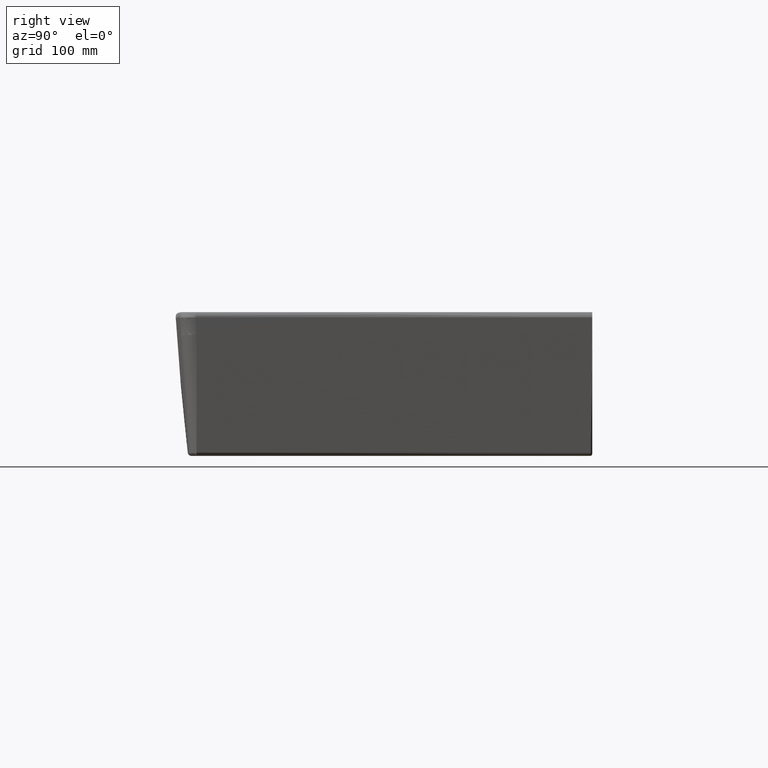
[diagram: clean part render]
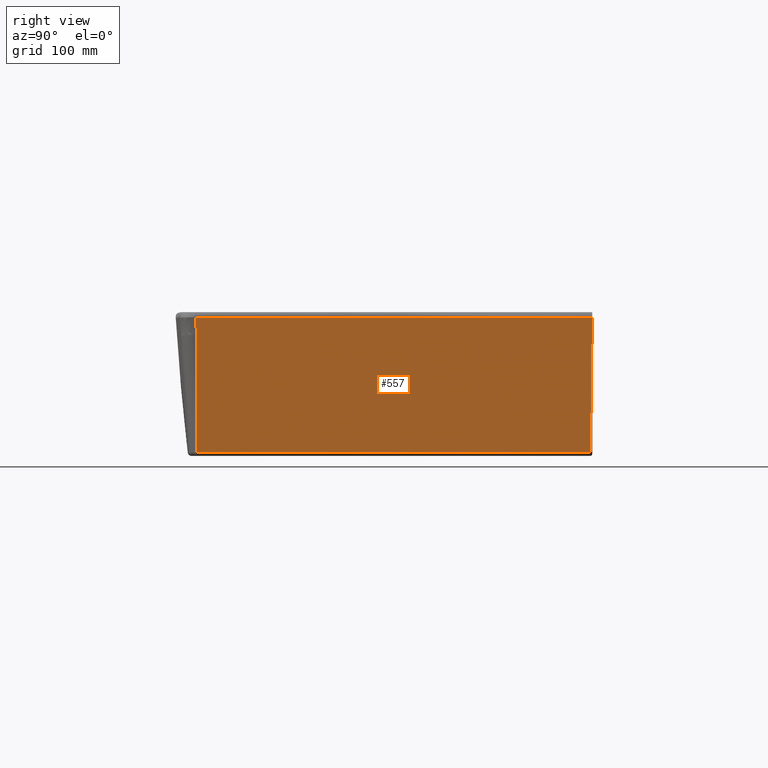
[diagram: same view with one face highlighted and labeled with its STEP entity id]
A machine part, right view. The second image highlights one B-rep face of the part: STEP entity #557.
In plain terms, the highlighted face is a freeform B-spline surface patch.
Its self-contained STEP definition (entity closure, byte-faithful):
#557=ADVANCED_FACE('',(#1414),#982,.T.);
#982=B_SPLINE_SURFACE_WITH_KNOTS('',3,1,((#35309,#35310),(#35311,#35312),
(#35313,#35314),(#35315,#35316),(#35317,#35318)),.UNSPECIFIED.,.F.,.F.,
 .F.,(4,1,4),(2,2),(0.,0.010399644229435,1.),(0.,1.),.UNSPECIFIED.);
#1414=FACE_OUTER_BOUND('',#1875,.T.);
#1875=EDGE_LOOP('',(#4006,#4007,#4008,#4009,#4010,#4011));
#4006=ORIENTED_EDGE('',*,*,#6087,.T.);
#4007=ORIENTED_EDGE('',*,*,#6061,.T.);
#4008=ORIENTED_EDGE('',*,*,#6141,.F.);
#4009=ORIENTED_EDGE('',*,*,#6142,.F.);
#4010=ORIENTED_EDGE('',*,*,#6143,.F.);
#4011=ORIENTED_EDGE('',*,*,#6144,.F.);
#4938=VERTEX_POINT('',#33199);
#4940=VERTEX_POINT('',#33205);
#4958=VERTEX_POINT('',#33810);
#4992=VERTEX_POINT('',#35294);
#4993=VERTEX_POINT('',#35299);
#4994=VERTEX_POINT('',#35304);
#6061=EDGE_CURVE('',#4940,#4938,#7256,.T.);
#6087=EDGE_CURVE('',#4958,#4940,#7282,.T.);
#6141=EDGE_CURVE('',#4992,#4938,#7336,.T.);
#6142=EDGE_CURVE('',#4993,#4992,#7337,.T.);
#6143=EDGE_CURVE('',#4994,#4993,#7338,.T.);
#6144=EDGE_CURVE('',#4958,#4994,#7339,.T.);
#7256=B_SPLINE_CURVE_WITH_KNOTS('',3,(#33201,#33202,#33203,#33204),
 .UNSPECIFIED.,.F.,.F.,(4,4),(0.,1.),.UNSPECIFIED.);
#7282=B_SPLINE_CURVE_WITH_KNOTS('',3,(#33806,#33807,#33808,#33809),
 .UNSPECIFIED.,.F.,.F.,(4,4),(0.,1.),.UNSPECIFIED.);
#7336=B_SPLINE_CURVE_WITH_KNOTS('',3,(#35290,#35291,#35292,#35293),
 .UNSPECIFIED.,.F.,.F.,(4,4),(0.,1.),.UNSPECIFIED.);
#7337=B_SPLINE_CURVE_WITH_KNOTS('',3,(#35295,#35296,#35297,#35298),
 .UNSPECIFIED.,.F.,.F.,(4,4),(0.,1.),.UNSPECIFIED.);
#7338=B_SPLINE_CURVE_WITH_KNOTS('',3,(#35300,#35301,#35302,#35303),
 .UNSPECIFIED.,.F.,.F.,(4,4),(0.,1.),.UNSPECIFIED.);
#7339=B_SPLINE_CURVE_WITH_KNOTS('',3,(#35305,#35306,#35307,#35308),
 .UNSPECIFIED.,.F.,.F.,(4,4),(0.,1.),.UNSPECIFIED.);
#33199=CARTESIAN_POINT('',(441.181061034264,-299.999933154849,-215.214536269219));
#33201=CARTESIAN_POINT('',(446.644900347386,-299.999970200709,-34.4954067995313));
#33202=CARTESIAN_POINT('',(445.792184558365,-299.99836065521,-94.7681701323221));
#33203=CARTESIAN_POINT('',(443.970655281489,-299.998360838226,-155.013510987746));
#33204=CARTESIAN_POINT('',(441.18031251624,-299.999970749842,-215.231429365804));
#33205=CARTESIAN_POINT('',(446.644931233343,-299.999970515952,-34.4953984329526));
#33806=CARTESIAN_POINT('',(446.961008292206,-301.355460891981,-8.07559009287005));
#33807=CARTESIAN_POINT('',(446.876319301074,-300.903596301564,-16.8827810263436));
#33808=CARTESIAN_POINT('',(446.770949986635,-300.451766070868,-25.6893865987465));
#33809=CARTESIAN_POINT('',(446.644900347235,-299.999970200167,-34.4954068100788));
#33810=CARTESIAN_POINT('',(446.961032080887,-301.355450245527,-8.075584840672));
#35290=CARTESIAN_POINT('',(439.223403741211,302.969520417419,-215.231449999601));
#35291=CARTESIAN_POINT('',(439.875628775716,101.979421902586,-215.231449906209));
#35292=CARTESIAN_POINT('',(440.528090825438,-99.0098996138059,-215.231433462549));
#35293=CARTESIAN_POINT('',(441.180335483143,-299.999732860469,-215.231430465818));
#35294=CARTESIAN_POINT('',(439.223434877996,302.96952025286,-215.231124585472));
#35295=CARTESIAN_POINT('',(444.989946514906,305.998850632714,-8.07519912416452));
#35296=CARTESIAN_POINT('',(444.341996175936,304.494045381051,-77.1629889484674));
#35297=CARTESIAN_POINT('',(442.421460084225,302.983622223127,-146.214878413717));
#35298=CARTESIAN_POINT('',(439.223456569694,302.969523618919,-215.230795730423));
#35299=CARTESIAN_POINT('',(444.989944170265,305.998853498157,-8.07540970610167));
#35300=CARTESIAN_POINT('',(444.991134463858,305.631381830874,-8.07559));
#35301=CARTESIAN_POINT('',(444.990737119642,305.75385528959,-8.07559));
#35302=CARTESIAN_POINT('',(444.990339775651,305.876328748321,-8.07559));
#35303=CARTESIAN_POINT('',(444.989942431886,305.998802207066,-8.07559));
#35304=CARTESIAN_POINT('',(444.991134463858,305.631381830808,-8.07559));
#35305=CARTESIAN_POINT('',(446.961,-301.35544,-8.07559));
#35306=CARTESIAN_POINT('',(446.304591418164,-99.0264794988578,-8.07559));
#35307=CARTESIAN_POINT('',(445.647556179302,103.302432044704,-8.07559));
#35308=CARTESIAN_POINT('',(444.991134463858,305.631381830874,-8.07559));
#35309=CARTESIAN_POINT('',(438.667265655219,309.632449078357,-226.521764649684));
#35310=CARTESIAN_POINT('',(440.662042632483,-305.010822375165,-226.521764649684));
#35311=CARTESIAN_POINT('',(438.704076708059,309.632510184462,-225.760410787777));
#35312=CARTESIAN_POINT('',(440.698853309485,-305.010761269682,-225.760410787777));
#35313=CARTESIAN_POINT('',(442.228978475186,309.638361446011,-152.550386958562));
#35314=CARTESIAN_POINT('',(444.22371911537,-305.004910038145,-152.550386958562));
#35315=CARTESIAN_POINT('',(444.321760123813,309.641830339618,-79.2998271427405));
#35316=CARTESIAN_POINT('',(446.316482118243,-305.001438288636,-79.2998271427405));
#35317=CARTESIAN_POINT('',(444.990289661284,309.642930083923,-6.77134983760936));
#35318=CARTESIAN_POINT('',(446.985010161077,-305.000332891928,-6.77134983760936));